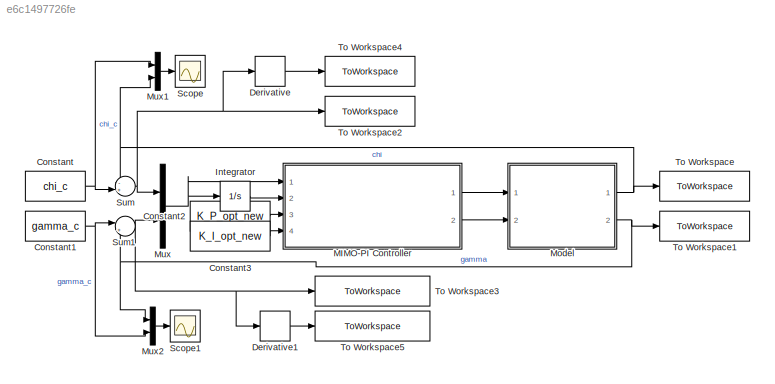
MODEL slx_e6c1497726fe
KIND model
CONFIG AbsTol = auto
CONFIG EnableMultiTasking = off
CONFIG FixedStep = auto
CONFIG MaxStep = auto
CONFIG MinStep = auto
CONFIG RelTol = 1e-3
CONFIG SampleTimeConstraint = Unconstrained
CONFIG SolverName = VariableStepAuto
CONFIG StartTime = 0.0
CONFIG StopTime = 50
BLOCK [Constant] Constant
  Value = chi_c
BLOCK [Constant] Constant1
  Value = gamma_c
BLOCK [Constant] Constant2
  Value = K_P_opt_new
  VectorParams1D = off
BLOCK [Constant] Constant3
  Value = K_I_opt_new
  VectorParams1D = off
BLOCK [Derivative] Derivative
BLOCK [Derivative] Derivative1
BLOCK [Integrator] Integrator
  Ports = [1, 1]
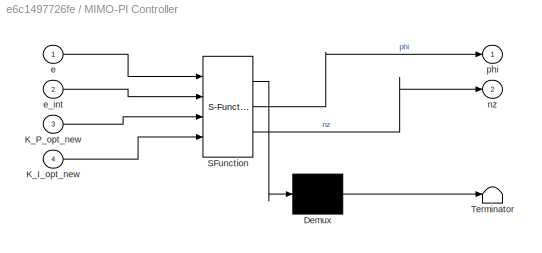
BLOCK [SubSystem] MIMO-PI Controller
  ErrorFcn = Stateflow.Translate.translate
  PermitHierarchicalResolution = ExplicitOnly
  Ports = [4, 2]
  RequestExecContextInheritance = off
  SFBlockType = MATLAB Function
  TreatAsAtomicUnit = on
BLOCK [Demux] MIMO-PI Controller/ Demux 
  Outputs = 1
  Ports = [1, 1]
BLOCK [S-Function] MIMO-PI Controller/ SFunction 
  EnableBusSupport = on
  FunctionName = sf_sfun
  PortCounts = [4 3]
  Ports = [4, 3]
  SFcnIsStateOwnerBlock = off
  SFunctionDeploymentMode = off
  Tag = Stateflow S-Function 2
BLOCK [Terminator] MIMO-PI Controller/ Terminator 
BLOCK [Inport] MIMO-PI Controller/K_I_opt_new
  Port = 4
BLOCK [Inport] MIMO-PI Controller/K_P_opt_new
  Port = 3
BLOCK [Inport] MIMO-PI Controller/e
BLOCK [Inport] MIMO-PI Controller/e_int
  Port = 2
BLOCK [Outport] MIMO-PI Controller/nz
  Port = 2
BLOCK [Outport] MIMO-PI Controller/phi
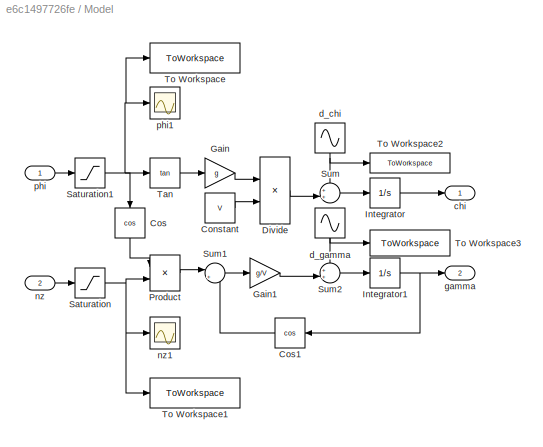
BLOCK [SubSystem] Model
  Ports = [2, 2]
  RequestExecContextInheritance = off
BLOCK [Constant] Model/Constant
  Value = V
BLOCK [Trigonometry] Model/Cos
  NameLocation = left
  Operator = cos
  Ports = [1, 1]
BLOCK [Trigonometry] Model/Cos1
  NameLocation = top
  Operator = cos
  Ports = [1, 1]
BLOCK [Product] Model/Divide
  Inputs = */
  Ports = [2, 1]
BLOCK [Gain] Model/Gain
  Gain = g
BLOCK [Gain] Model/Gain1
  Gain = g/V
BLOCK [Integrator] Model/Integrator
  InitialCondition = chi0
  Ports = [1, 1]
BLOCK [Integrator] Model/Integrator1
  InitialCondition = gamma0
  Ports = [1, 1]
BLOCK [Product] Model/Product
  Ports = [2, 1]
BLOCK [Saturate] Model/Saturation
  LowerLimit = -2.1
  UpperLimit = 2.1
BLOCK [Saturate] Model/Saturation1
  LowerLimit = -pi/4
  UpperLimit = pi/4
BLOCK [Sum] Model/Sum
  Inputs = ++|
  Ports = [2, 1]
BLOCK [Sum] Model/Sum1
  Inputs = |+-
  Ports = [2, 1]
BLOCK [Sum] Model/Sum2
  Inputs = ++|
  Ports = [2, 1]
BLOCK [Trigonometry] Model/Tan
  Operator = tan
  Ports = [1, 1]
BLOCK [ToWorkspace] Model/To Workspace
  FixptAsFi = on
  MaxDataPoints = inf
  Ports = [1]
  SampleTime = -1
  VariableName = phi
BLOCK [ToWorkspace] Model/To Workspace1
  FixptAsFi = on
  MaxDataPoints = inf
  Ports = [1]
  SampleTime = -1
  VariableName = nz
BLOCK [ToWorkspace] Model/To Workspace2
  FixptAsFi = on
  MaxDataPoints = inf
  Ports = [1]
  SampleTime = -1
  VariableName = d_chi
BLOCK [ToWorkspace] Model/To Workspace3
  FixptAsFi = on
  MaxDataPoints = inf
  Ports = [1]
  SampleTime = -1
  VariableName = d_gamma
BLOCK [Outport] Model/chi
BLOCK [Sin] Model/d_chi
  Amplitude = L_d_chi
  Frequency = w_chi
  NameLocation = left
  Ports = [0, 1]
  SampleTime = 0
BLOCK [Sin] Model/d_gamma
  Amplitude = L_d_gamma
  Frequency = w_gamma
  NameLocation = left
  Phase = pi/2
  Ports = [0, 1]
  SampleTime = 0
BLOCK [Outport] Model/gamma
  Port = 2
BLOCK [Inport] Model/nz
  Port = 2
BLOCK [Scope] Model/nz1
  Floating = off
  NumInputPorts = 1
  Ports = [1]
  ScopeSpecificationString = Simulink.scopes.TimeScopeBlockCfg('CurrentConfiguration', extmgr.ConfigurationSet(extmgr.Configuration('Core','General UI',true),extmgr.Configuration('Core','Source UI',true),extmgr.Configuration('Sources','WiredSimulink',true,'DataLoggingVariableName','ScopeData3'),extmgr.Configuration('Visuals','Time Domain',true,'SerializedDisplays',{struct('MinYLimReal','-1.18097','MaxYLimReal','2.13141','YLab...<+1400ch>
BLOCK [Inport] Model/phi
BLOCK [Scope] Model/phi1
  Floating = off
  NumInputPorts = 1
  Ports = [1]
  ScopeSpecificationString = Simulink.scopes.TimeScopeBlockCfg('CurrentConfiguration', extmgr.ConfigurationSet(extmgr.Configuration('Core','General UI',true),extmgr.Configuration('Core','Source UI',true),extmgr.Configuration('Sources','WiredSimulink',true,'DataLoggingVariableName','ScopeData2'),extmgr.Configuration('Visuals','Time Domain',true,'SerializedDisplays',{struct('MinYLimReal','-0.98175','MaxYLimReal','0.98175','YLab...<+1402ch>
BLOCK [Mux] Mux
  DisplayOption = bar
  Inputs = 2
  Ports = [2, 1]
BLOCK [Mux] Mux1
  DisplayOption = bar
  Inputs = 2
  Ports = [2, 1]
BLOCK [Mux] Mux2
  DisplayOption = bar
  Inputs = 2
  Ports = [2, 1]
BLOCK [Scope] Scope
  Floating = off
  NumInputPorts = 1
  Ports = [1]
  ScopeSpecificationString = Simulink.scopes.TimeScopeBlockCfg('CurrentConfiguration', extmgr.ConfigurationSet(extmgr.Configuration('Core','General UI',true),extmgr.Configuration('Core','Source UI',true),extmgr.Configuration('Sources','WiredSimulink',true),extmgr.Configuration('Visuals','Time Domain',true,'SerializedDisplays',{struct('MinYLimReal','-0.91612','MaxYLimReal','1.26534','YLabelReal','','MinYLimMag','0.00000','MaxY...<+1375ch>
BLOCK [Scope] Scope1
  Floating = off
  NumInputPorts = 1
  Ports = [1]
  ScopeSpecificationString = Simulink.scopes.TimeScopeBlockCfg('CurrentConfiguration', extmgr.ConfigurationSet(extmgr.Configuration('Core','General UI',true),extmgr.Configuration('Core','Source UI',true),extmgr.Configuration('Sources','WiredSimulink',true,'DataLoggingVariableName','ScopeData1'),extmgr.Configuration('Visuals','Time Domain',true,'SerializedDisplays',{struct('MinYLimReal','-0.20496','MaxYLimReal','0.89544','YLab...<+1403ch>
BLOCK [Sum] Sum
  Inputs = -+|
  Ports = [2, 1]
BLOCK [Sum] Sum1
  Inputs = |+-
  Ports = [2, 1]
BLOCK [ToWorkspace] To Workspace
  FixptAsFi = on
  MaxDataPoints = inf
  Ports = [1]
  SampleTime = -1
  VariableName = chi
BLOCK [ToWorkspace] To Workspace1
  FixptAsFi = on
  MaxDataPoints = inf
  Ports = [1]
  SampleTime = -1
  VariableName = gamma
BLOCK [ToWorkspace] To Workspace2
  FixptAsFi = on
  MaxDataPoints = inf
  Ports = [1]
  SampleTime = -1
  VariableName = e_chi
BLOCK [ToWorkspace] To Workspace3
  FixptAsFi = on
  MaxDataPoints = inf
  Ports = [1]
  SampleTime = -1
  VariableName = e_gamma
BLOCK [ToWorkspace] To Workspace4
  FixptAsFi = on
  MaxDataPoints = inf
  Ports = [1]
  SampleTime = -1
  VariableName = e_chi_dot
BLOCK [ToWorkspace] To Workspace5
  FixptAsFi = on
  MaxDataPoints = inf
  Ports = [1]
  SampleTime = -1
  VariableName = e_gamma_dot
NET Constant1:1 -> Mux2:2, Sum1:1
LINE Constant2:1 -> MIMO-PI Controller:3
LINE Constant3:1 -> MIMO-PI Controller:4
NET Constant:1 -> Mux1:1, Sum:2
LINE Derivative1:1 -> To Workspace5:1
LINE Derivative:1 -> To Workspace4:1
LINE Integrator:1 -> MIMO-PI Controller:2
LINE MIMO-PI Controller:1 -> Model:1
LINE MIMO-PI Controller:2 -> Model:2
LINE Model/Constant:1 -> Model/Divide:2
LINE Model/Cos1:1 -> Model/Sum1:2
LINE Model/Cos:1 -> Model/Product:1
LINE Model/Divide:1 -> Model/Sum:2
LINE Model/Gain1:1 -> Model/Sum2:2
LINE Model/Gain:1 -> Model/Divide:1
NET Model/Integrator1:1 -> Model/Cos1:1, Model/gamma:1
LINE Model/Integrator:1 -> Model/chi:1
LINE Model/Product:1 -> Model/Sum1:1
NET Model/Saturation1:1 -> Model/Cos:1, Model/Tan:1, Model/To Workspace:1, Model/phi1:1
NET Model/Saturation:1 -> Model/Product:2, Model/To Workspace1:1, Model/nz1:1
LINE Model/Sum1:1 -> Model/Gain1:1
LINE Model/Sum2:1 -> Model/Integrator1:1
LINE Model/Sum:1 -> Model/Integrator:1
LINE Model/Tan:1 -> Model/Gain:1
NET Model/d_chi:1 -> Model/Sum:1, Model/To Workspace2:1
NET Model/d_gamma:1 -> Model/Sum2:1, Model/To Workspace3:1
LINE Model/nz:1 -> Model/Saturation:1
LINE Model/phi:1 -> Model/Saturation1:1
NET Model:1 -> Mux1:2, Sum:1, To Workspace:1
NET Model:2 -> Mux2:1, Sum1:2, To Workspace1:1
LINE Mux1:1 -> Scope:1
LINE Mux2:1 -> Scope1:1
NET Mux:1 -> Integrator:1, MIMO-PI Controller:1
NET Sum1:1 -> Derivative1:1, Mux:2, To Workspace3:1
NET Sum:1 -> Derivative:1, Mux:1, To Workspace2:1
note: NET lines group one-source signal fan-out (src -> all destinations, sorted); 1:1 wires keep LINE
CHART MIMO-PI Controller states=1 transitions=1
  STATE_LABEL 'eML_blk_kernel()'
  STATE_LABEL "SCRIPT:\nfunction [phi,nz] = MIMO_PI(e,e_int,K_P_opt_new,K_I_opt_new)\n    u = K_P_opt_new * e + K_I_opt_new * e_int;\n%     disp('---------------------------------');\n%     disp(['e:']); disp(e);\n%     disp(['e_integral:']); disp(e_int);\n%     disp(['K_P_opt_new:']); disp(K_P_opt_new);\n%     disp(['K_I_opt_new:']); disp(K_I_opt_new);\n     phi = u(1); \n     nz = u(2);\nend\n"
CHART  states=0 transitions=0
